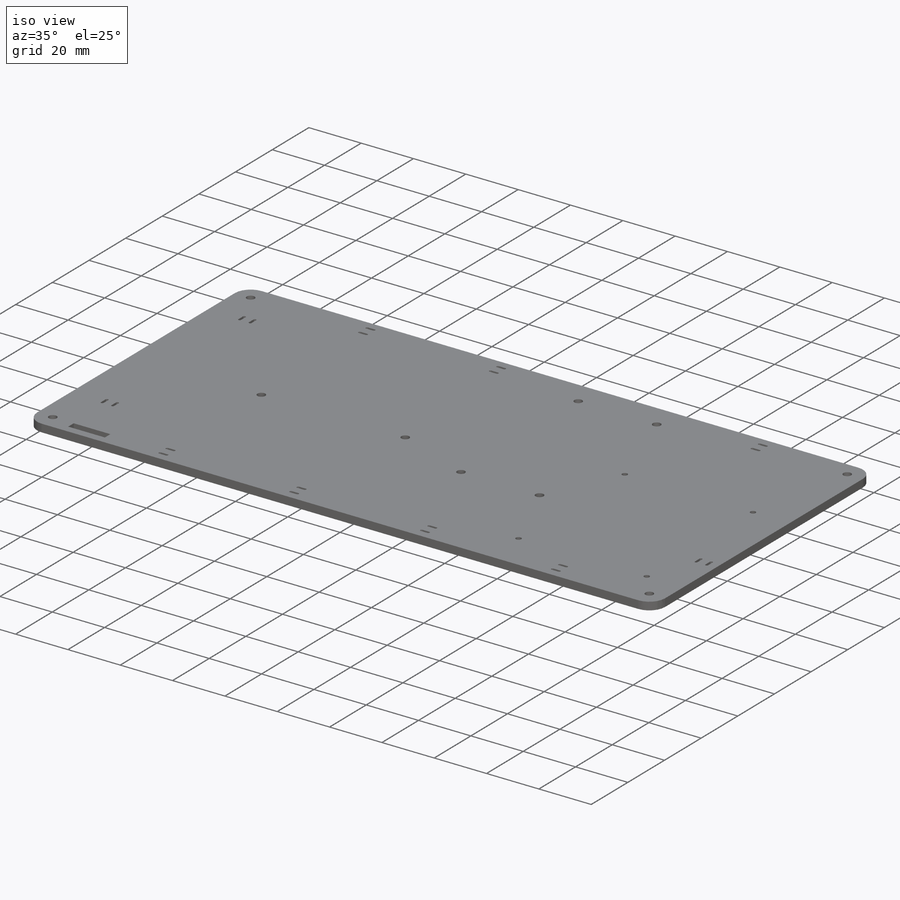
[diagram: iso view]
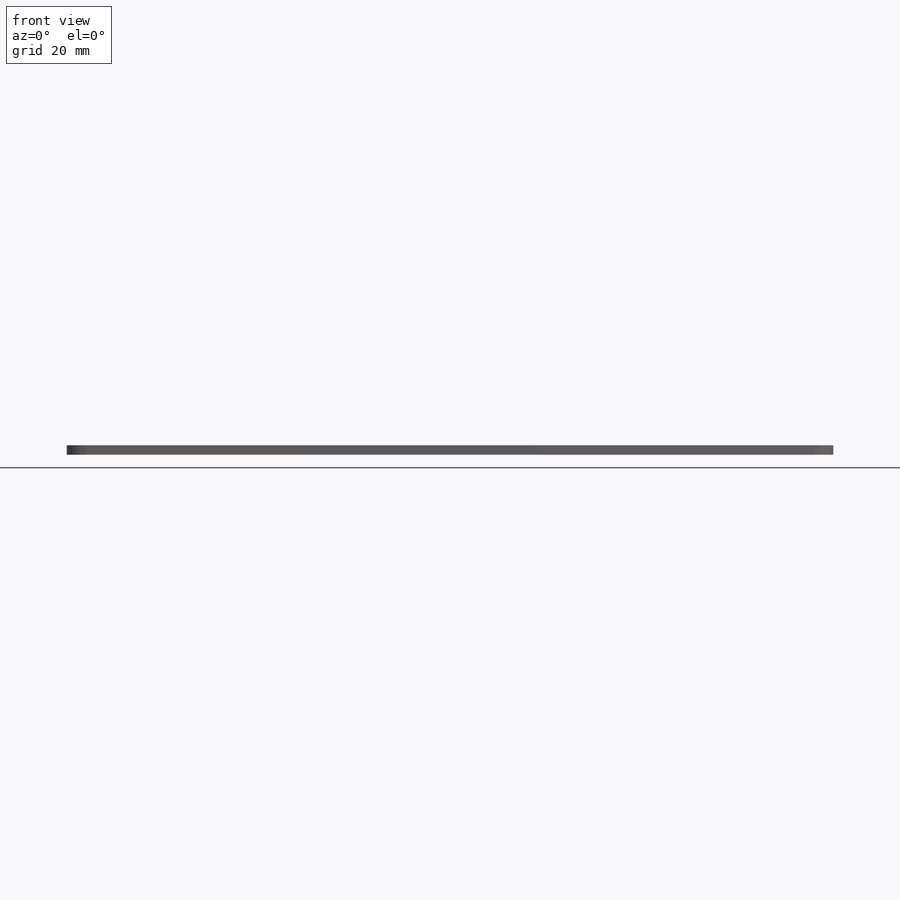
[diagram: front view]
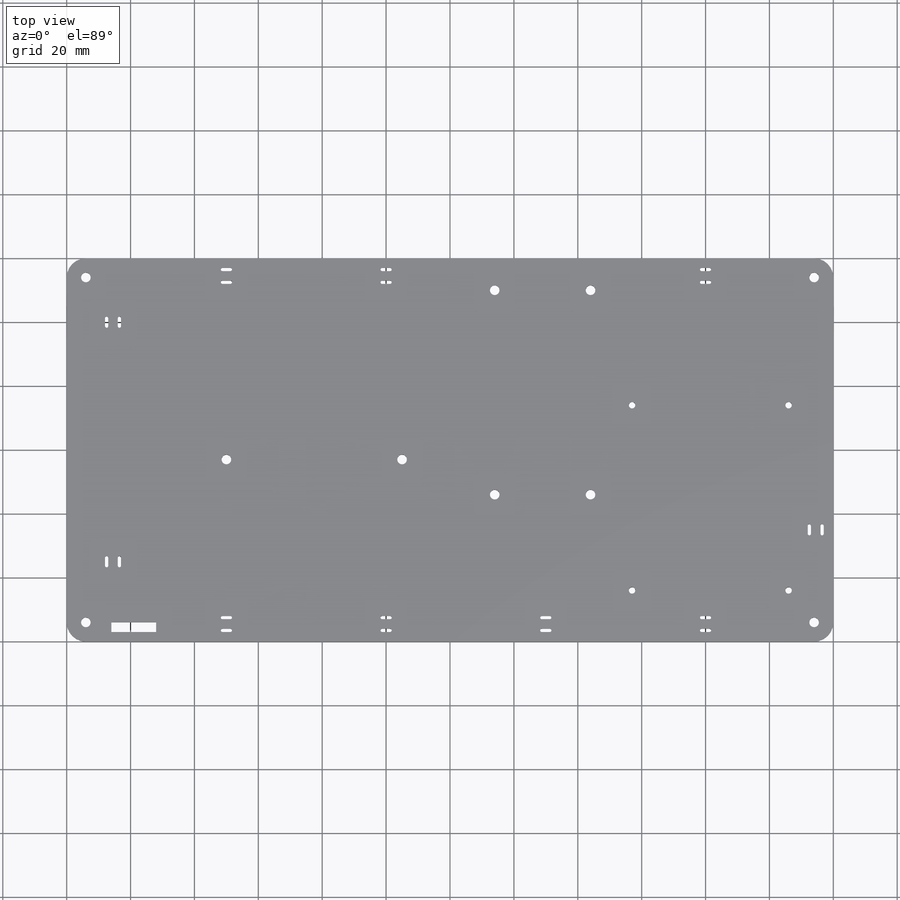
[diagram: top view]
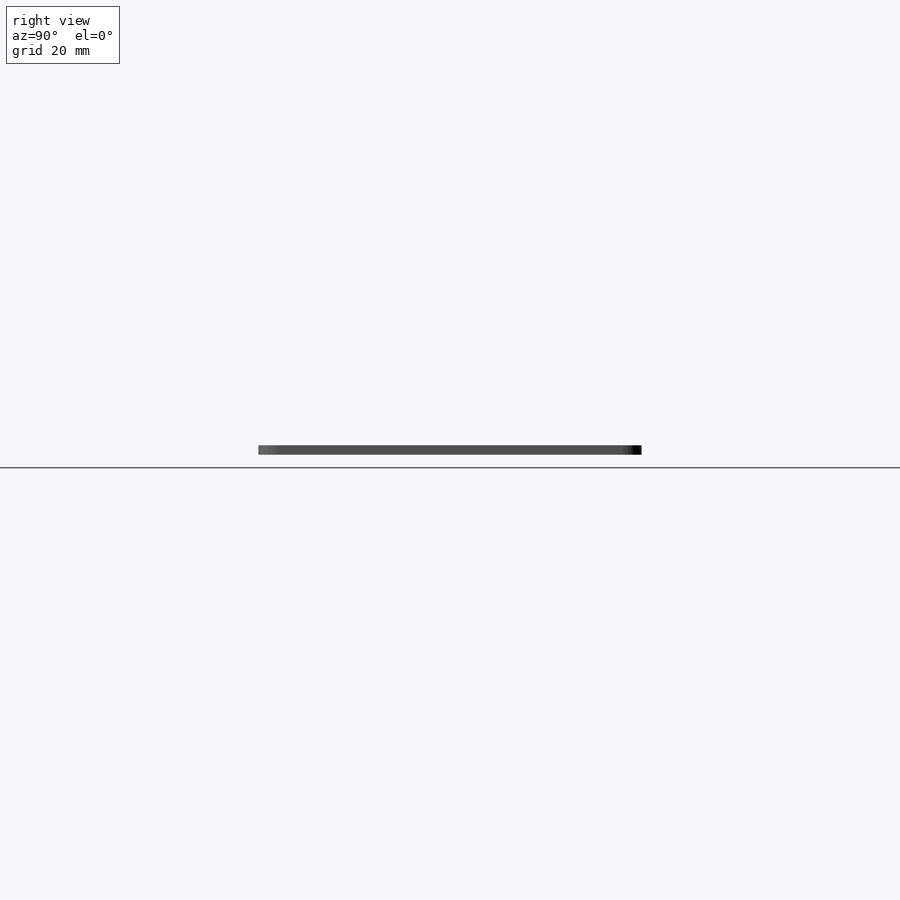
[diagram: right view]
SOLIDWORKS PART (.sldprt)
format: sldprt  version: not decoded by parser v0  size: 375,296 bytes
history: native  units: mm
features: sketch x6, cut_extrude x5, material x1, extrude x1, fillet x1 (+12 scaffold rows collapsed)
feature tree (26):
  scaffold x12  (default folders/planes/origin — collapsed)
  material  "Lasercut ABS"
  sketch  "Sketch1"  dims[D1=240.0mm D2=120.0mm D3=3.0mm D4=14.0mm D5=3.0mm D6=14.0mm]
  extrude  "Boss-Extrude1"  Depth=3mm
  fillet  "Fillet1"  Radius=6mm
  sketch  "Sketch2"  dims[D1=3.0mm]
  cut_extrude  "Cut-Extrude2"  [1 undecoded]
  sketch  "Sketch3"  dims[D1=3.0mm D2=50.0mm D3=55.0mm D4=3.0mm]
  cut_extrude  "Cut-Extrude3"  [1 undecoded]
  sketch  "Sketch4"  dims[D5=3.0mm D1=30.0mm D2=64.0mm D3=14.0mm D4=10.0mm]
  cut_extrude  "Cut-Extrude4"  [1 undecoded]
  sketch  "Sketch5"  dims[D1=2.0mm D2=58.0mm D3=49.0mm D4=16.0mm D5=14.0mm]
  cut_extrude  "Cut-Extrude5"  [1 undecoded]
  sketch  "Sketch7"  dims[c1.D1=~1.717679mm c1.D14=0.5mm c2.D1=3.5mm c2.D2=1.0mm c2.D3=4.0mm c2.D4=3.5mm c2.D5=1.0mm c3.D4=3.5mm c3.D5=1.0mm c3.D6=4.0mm c3.D7=3.5mm c3.D8=1.0mm c3.D9=4.0mm c3.D10=3.0mm c3.D11=4.0mm c3.D12=50.0mm c3.D13=1.0mm c3.D14=3.5mm c3.D15=50.0mm c3.D16=50.0mm c3.D17=50.0mm c3.D18=3.0mm c3.D19=35.0mm c3.D20=12.0mm c3.D21=20.0mm c3.D22=35.0mm]
  cut_extrude  "Cut-Extrude6"  [1 undecoded]
decode coverage: 8 of 13 modeling features carry decoded parameters
note: ~ marks probable driven/reference dimensions
note: 5 parameter values undecoded
summary: no parameter record found for 5 features
note: suppression state not decoded; provenance and decode notes live in map.json
